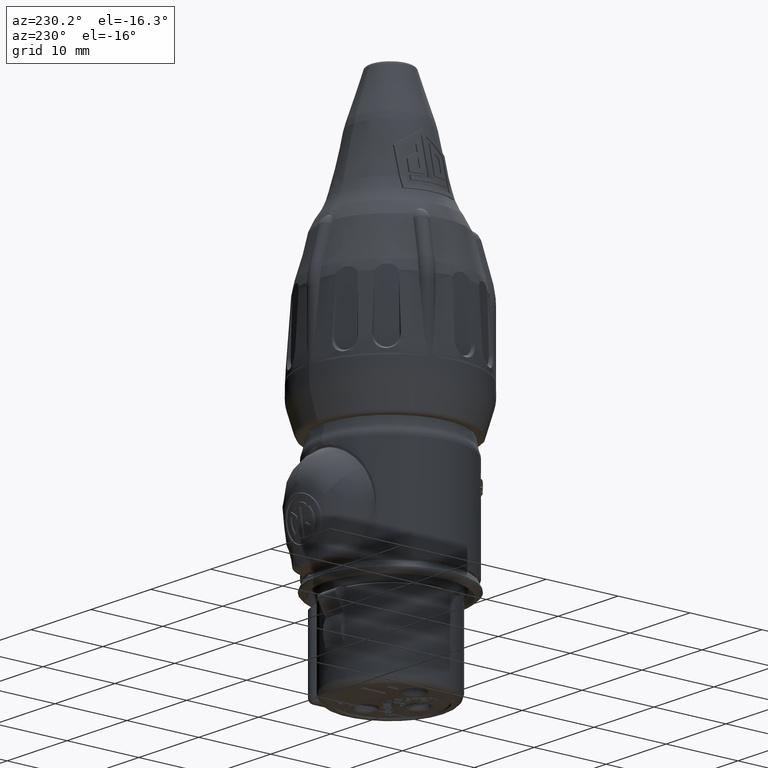
[diagram: clean part render]
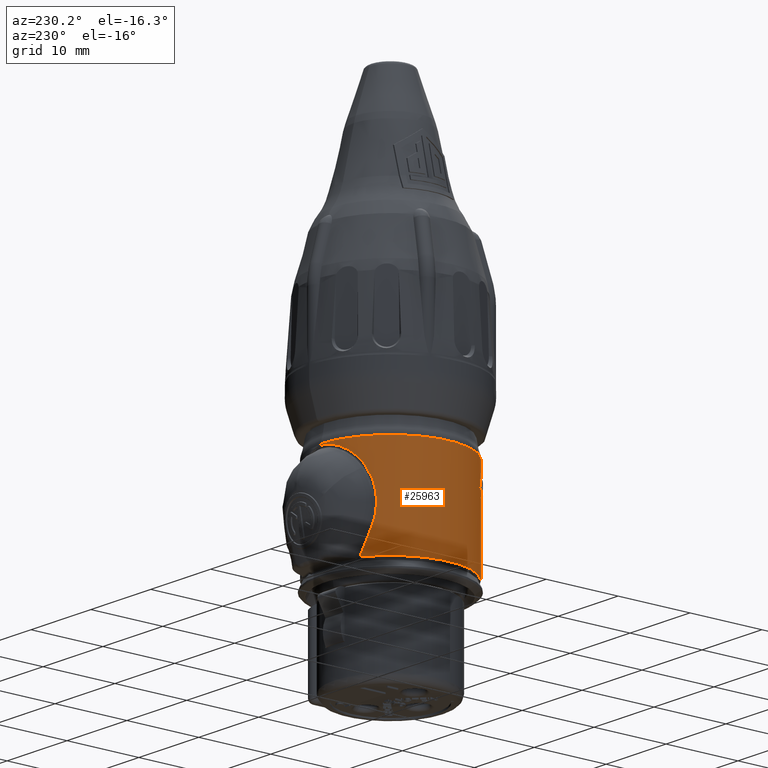
[diagram: same view with one face highlighted and labeled with its STEP entity id]
A machine part, auxiliary view. The second image highlights one B-rep face of the part: STEP entity #25963.
In plain terms, the highlighted cylindrical surface (partial cylindrical patch) has radius 9.675 mm, axis along (0, 0, 1).
Its self-contained STEP definition (entity closure, byte-faithful):
#2498=CARTESIAN_POINT('',(-2.92E-1,-9.670592587841E0,9.609E0));
#2499=CARTESIAN_POINT('',(-2.430355601991E-1,-9.672071051161E0,
9.855998396329E0));
#2500=CARTESIAN_POINT('',(-1.940708023849E-1,-9.673177329178E0,
1.010299839686E1));
#2501=CARTESIAN_POINT('',(-1.451057268722E-1,-9.673911790379E0,1.035E1));
#2503=CARTESIAN_POINT('',(0.E0,0.E0,1.035E1));
#2504=DIRECTION('',(0.E0,0.E0,1.E0));
#2505=DIRECTION('',(-8.011428701522E-2,-9.967856845963E-1,0.E0));
#2506=AXIS2_PLACEMENT_3D('',#2503,#2504,#2505);
#2508=CARTESIAN_POINT('',(-9.22E-1,-9.630967812219E0,9.609E0));
#2509=CARTESIAN_POINT('',(-8.730364947944E-1,-9.635655228134E0,
9.855993681815E0));
#2510=CARTESIAN_POINT('',(-8.240717354693E-1,-9.639965971577E0,
1.010299368997E1));
#2511=CARTESIAN_POINT('',(-7.751057268722E-1,-9.643901498469E0,1.035E1));
#2513=CARTESIAN_POINT('',(0.E0,0.E0,9.609E0));
#2514=DIRECTION('',(0.E0,0.E0,1.E0));
#2515=DIRECTION('',(-1.489405684755E-1,-9.888461493388E-1,0.E0));
#2516=AXIS2_PLACEMENT_3D('',#2513,#2514,#2515);
#2518=CARTESIAN_POINT('',(-1.486E0,-9.560200259409E0,9.382E0));
#2519=CARTESIAN_POINT('',(-1.471000208869E0,-9.562531768061E0,
9.457665613039E0));
#2520=CARTESIAN_POINT('',(-1.456000208724E0,-9.564827154898E0,
9.533332280434E0));
#2521=CARTESIAN_POINT('',(-1.441E0,-9.567086494853E0,9.609E0));
#2523=CARTESIAN_POINT('',(0.E0,0.E0,9.382E0));
#2524=DIRECTION('',(0.E0,0.E0,1.E0));
#2525=DIRECTION('',(-1.535917312661E-1,-9.881343937373E-1,0.E0));
#2526=AXIS2_PLACEMENT_3D('',#2523,#2524,#2525);
#2528=CARTESIAN_POINT('',(0.E0,0.E0,-5.140441475095E-1));
#2529=DIRECTION('',(0.E0,0.E0,-1.E0));
#2530=DIRECTION('',(0.E0,-1.E0,0.E0));
#2531=AXIS2_PLACEMENT_3D('',#2528,#2529,#2530);
#2533=CARTESIAN_POINT('',(-6.148314053924E0,7.470198075976E0,3.358203129712E0));
#2534=CARTESIAN_POINT('',(-6.115115924312E0,7.497521630772E0,3.219812073543E0));
#2535=CARTESIAN_POINT('',(-6.045647503544E0,7.553932447213E0,2.940723846869E0));
#2536=CARTESIAN_POINT('',(-5.935619742043E0,7.640778104093E0,2.527782285422E0));
#2537=CARTESIAN_POINT('',(-5.808795708314E0,7.737743668357E0,2.082677877925E0));
#2538=CARTESIAN_POINT('',(-5.673597393674E0,7.837443756582E0,1.639280687229E0));
#2539=CARTESIAN_POINT('',(-5.534935555893E0,7.935973623052E0,1.212016328942E0));
#2540=CARTESIAN_POINT('',(-5.397280427446E0,8.030185736977E0,
8.114892564286E-1));
#2541=CARTESIAN_POINT('',(-5.264504096552E0,8.117795288375E0,
4.443828003171E-1));
#2542=CARTESIAN_POINT('',(-5.138077811563E0,8.198337213252E0,
1.102271504480E-1));
#2543=CARTESIAN_POINT('',(-5.016609167404E0,8.273227695342E0,
-1.984951749752E-1));
#2544=CARTESIAN_POINT('',(-4.930517147967E0,8.324552922570E0,
-4.092519464488E-1));
#2545=CARTESIAN_POINT('',(-4.886883783513E0,8.350089329293E0,
-5.140441347706E-1));
#2547=CARTESIAN_POINT('',(-5.422429856919E0,8.012669932475E0,9.632429320184E0));
#2548=CARTESIAN_POINT('',(-5.498132831244E0,7.961438887711E0,9.493572044677E0));
#2549=CARTESIAN_POINT('',(-5.636585877743E0,7.864635011139E0,9.217399432847E0));
#2550=CARTESIAN_POINT('',(-5.808988697927E0,7.737844649327E0,8.813055640924E0));
#2551=CARTESIAN_POINT('',(-5.952727339345E0,7.627535008292E0,8.411580911354E0));
#2552=CARTESIAN_POINT('',(-6.063490122130E0,7.539549736583E0,8.043898164148E0));
#2553=CARTESIAN_POINT('',(-6.151016680621E0,7.468214192180E0,7.701405394317E0));
#2554=CARTESIAN_POINT('',(-6.226356934394E0,7.405465220911E0,7.348812346476E0));
#2555=CARTESIAN_POINT('',(-6.290433163248E0,7.351045914951E0,6.975760875486E0));
#2556=CARTESIAN_POINT('',(-6.337330786445E0,7.310586359115E0,6.614005866777E0));
#2557=CARTESIAN_POINT('',(-6.367536708841E0,7.284258738971E0,6.290389639996E0));
#2558=CARTESIAN_POINT('',(-6.386784957446E0,7.267373892904E0,5.981947725703E0));
#2559=CARTESIAN_POINT('',(-6.396768831427E0,7.258579422631E0,5.652569837981E0));
#2560=CARTESIAN_POINT('',(-6.395590816541E0,7.259618340728E0,5.319623424476E0));
#2561=CARTESIAN_POINT('',(-6.383923610032E0,7.269889461694E0,5.001677202686E0));
#2562=CARTESIAN_POINT('',(-6.364409999305E0,7.286988265286E0,4.716143979271E0));
#2563=CARTESIAN_POINT('',(-6.340447507165E0,7.307853895388E0,4.467453109750E0));
#2564=CARTESIAN_POINT('',(-6.313926484758E0,7.330784000787E0,4.249526097767E0));
#2565=CARTESIAN_POINT('',(-6.285936798209E0,7.354800292329E0,4.055760512964E0));
#2566=CARTESIAN_POINT('',(-6.257509428663E0,7.379001485627E0,3.883786013036E0));
#2567=CARTESIAN_POINT('',(-6.229281783499E0,7.402845406298E0,3.730733137373E0));
#2568=CARTESIAN_POINT('',(-6.201600710144E0,7.426048390678E0,3.593692760979E0));
#2569=CARTESIAN_POINT('',(-6.174656032005E0,7.448466282961E0,3.470146291921E0));
#2570=CARTESIAN_POINT('',(-6.156976807425E0,7.463068233849E0,3.394315290057E0));
#2571=CARTESIAN_POINT('',(-6.148314053924E0,7.470198075976E0,3.358203129712E0));
#2573=CARTESIAN_POINT('',(1.077325782357E-14,9.675E0,1.276668458089E1));
#2574=CARTESIAN_POINT('',(-8.348168341964E-2,9.674999985188E0,
1.276668451110E1));
#2575=CARTESIAN_POINT('',(-2.501146377716E-1,9.672803976703E0,
1.276342871668E1));
#2576=CARTESIAN_POINT('',(-4.941017479923E-1,9.663439120274E0,
1.274945909889E1));
#2577=CARTESIAN_POINT('',(-7.463996938390E-1,9.647263280194E0,
1.272521746552E1));
#2578=CARTESIAN_POINT('',(-9.918437161429E-1,9.625031825849E0,
1.269175654501E1));
#2579=CARTESIAN_POINT('',(-1.227583242930E0,9.597763044024E0,1.265058586026E1));
#2580=CARTESIAN_POINT('',(-1.464263962103E0,9.564625025912E0,1.260038862701E1));
#2581=CARTESIAN_POINT('',(-1.722614789234E0,9.521735938066E0,1.253507172629E1));
#2582=CARTESIAN_POINT('',(-2.004120044925E0,9.466702101679E0,1.245044746534E1));
#2583=CARTESIAN_POINT('',(-2.304470755137E0,9.398382184570E0,1.234403943893E1));
#2584=CARTESIAN_POINT('',(-2.631365401131E0,9.312516850112E0,1.220819526439E1));
#2585=CARTESIAN_POINT('',(-2.976861451162E0,9.208043049428E0,1.203958652954E1));
#2586=CARTESIAN_POINT('',(-3.317616832853E0,9.090720588577E0,1.184557113863E1));
#2587=CARTESIAN_POINT('',(-3.643905571507E0,8.964762873493E0,1.163104252297E1));
#2588=CARTESIAN_POINT('',(-3.960086397425E0,8.829728323073E0,1.139285496072E1));
#2589=CARTESIAN_POINT('',(-4.280480330960E0,8.678952518083E0,1.111467017020E1));
#2590=CARTESIAN_POINT('',(-4.575924389749E0,8.526267985655E0,1.081621788330E1));
#2591=CARTESIAN_POINT('',(-4.814494306540E0,8.393267983007E0,1.054051914338E1));
#2592=CARTESIAN_POINT('',(-5.020420421245E0,8.271590188643E0,1.027376680066E1));
#2593=CARTESIAN_POINT('',(-5.220263727792E0,8.147002808730E0,9.982351904104E0));
#2594=CARTESIAN_POINT('',(-5.355917263608E0,8.057680983924E0,9.754425623859E0));
#2595=CARTESIAN_POINT('',(-5.422429856919E0,8.012669932475E0,9.632429320184E0));
#2597=CARTESIAN_POINT('',(0.E0,0.E0,1.294133505427E1));
#2598=DIRECTION('',(0.E0,0.E0,1.E0));
#2599=DIRECTION('',(0.E0,1.E0,0.E0));
#2600=AXIS2_PLACEMENT_3D('',#2597,#2598,#2599);
#2602=CARTESIAN_POINT('',(0.E0,0.E0,9.609E0));
#2603=DIRECTION('',(0.E0,0.E0,1.E0));
#2604=DIRECTION('',(-3.018087855297E-2,-9.995444535236E-1,0.E0));
#2605=AXIS2_PLACEMENT_3D('',#2602,#2603,#2604);
#2607=CARTESIAN_POINT('',(-1.697E0,-9.525010026241E0,9.382E0));
#2608=CARTESIAN_POINT('',(-1.646001743973E0,-9.534096005179E0,
9.704655632903E0));
#2609=CARTESIAN_POINT('',(-1.595001739345E0,-9.542759747924E0,
1.002732232885E1));
#2610=CARTESIAN_POINT('',(-1.544E0,-9.551004606846E0,1.035E1));
#2612=CARTESIAN_POINT('',(0.E0,0.E0,1.035E1));
#2613=DIRECTION('',(0.E0,0.E0,1.E0));
#2614=DIRECTION('',(-2.311111111111E-1,-9.729273633324E-1,0.E0));
#2615=AXIS2_PLACEMENT_3D('',#2612,#2613,#2614);
#2617=CARTESIAN_POINT('',(-2.295587809917E0,-9.398718083173E0,9.973E0));
#2618=CARTESIAN_POINT('',(-2.275725597192E0,-9.403569324907E0,
1.009866419554E1));
#2619=CARTESIAN_POINT('',(-2.255862993306E0,-9.408353945098E0,
1.022433086588E1));
#2620=CARTESIAN_POINT('',(-2.236E0,-9.413072240241E0,1.035E1));
#2622=CARTESIAN_POINT('',(-2.854E0,-9.244474511837E0,1.035E1));
#2623=CARTESIAN_POINT('',(-2.668947415792E0,-9.301604863016E0,
1.022506572119E1));
#2624=CARTESIAN_POINT('',(-2.482804695418E0,-9.352991336572E0,
1.009939546036E1));
#2625=CARTESIAN_POINT('',(-2.295587809917E0,-9.398718083173E0,9.973E0));
#2627=CARTESIAN_POINT('',(0.E0,0.E0,1.035E1));
#2628=DIRECTION('',(0.E0,0.E0,1.E0));
#2629=DIRECTION('',(-3.811886304910E-1,-9.244972839249E-1,0.E0));
#2630=AXIS2_PLACEMENT_3D('',#2627,#2628,#2629);
#2632=CARTESIAN_POINT('',(-3.688E0,-8.944511221973E0,1.035E1));
#2633=CARTESIAN_POINT('',(-3.447770596317E0,-9.043562586413E0,
1.021126669554E1));
#2634=CARTESIAN_POINT('',(-3.204752170176E0,-9.132459402481E0,
1.007092272105E1));
#2635=CARTESIAN_POINT('',(-2.959E0,-9.211402933321E0,9.929E0));
#2637=CARTESIAN_POINT('',(-3.662E0,-8.955187379391E0,9.684E0));
#2638=CARTESIAN_POINT('',(-3.662E0,-8.955187379391E0,9.709891355754E0));
#2639=CARTESIAN_POINT('',(-3.654211208055E0,-8.958379950569E0,
9.756829220315E0));
#2640=CARTESIAN_POINT('',(-3.616656960179E0,-8.973645670257E0,
9.813403987400E0));
#2641=CARTESIAN_POINT('',(-3.557877479507E0,-8.997160392280E0,
9.854043499990E0));
#2642=CARTESIAN_POINT('',(-3.483055085368E0,-9.026428892246E0,
9.882681053708E0));
#2643=CARTESIAN_POINT('',(-3.398278309555E0,-9.058717835720E0,
9.901986103558E0));
#2644=CARTESIAN_POINT('',(-3.303907829907E0,-9.093598311164E0,
9.915087228682E0));
#2645=CARTESIAN_POINT('',(-3.199771696439E0,-9.130801282342E0,
9.923466423403E0));
#2646=CARTESIAN_POINT('',(-3.085608864547E0,-9.170056265781E0,
9.928065072435E0));
#2647=CARTESIAN_POINT('',(-3.002381823617E0,-9.197467291051E0,9.929E0));
#2648=CARTESIAN_POINT('',(-2.959E0,-9.211402933321E0,9.929E0));
#2650=CARTESIAN_POINT('',(-2.503E0,-9.345620150637E0,9.382E0));
#2651=CARTESIAN_POINT('',(-2.558221139440E0,-9.330830494115E0,9.382E0));
#2652=CARTESIAN_POINT('',(-2.664525361994E0,-9.301310490660E0,
9.382689030644E0));
#2653=CARTESIAN_POINT('',(-2.811408348406E0,-9.257906385702E0,
9.385908607195E0));
#2654=CARTESIAN_POINT('',(-2.946681120801E0,-9.215686356116E0,
9.391481652901E0));
#2655=CARTESIAN_POINT('',(-3.071100460992E0,-9.174923915668E0,
9.399660725203E0));
#2656=CARTESIAN_POINT('',(-3.185293283645E0,-9.135863070464E0,
9.410811060943E0));
#2657=CARTESIAN_POINT('',(-3.289935681779E0,-9.098665867189E0,
9.425500082259E0));
#2658=CARTESIAN_POINT('',(-3.385565019213E0,-9.063483049709E0,
9.444648321698E0));
#2659=CARTESIAN_POINT('',(-3.471683580206E0,-9.030809180981E0,
9.469591742990E0));
#2660=CARTESIAN_POINT('',(-3.546227231696E0,-9.001761026090E0,
9.502013953518E0));
#2661=CARTESIAN_POINT('',(-3.608231398046E0,-8.977049883022E0,
9.545093954543E0));
#2662=CARTESIAN_POINT('',(-3.652335215853E0,-8.959151418786E0,
9.606051381670E0));
#2663=CARTESIAN_POINT('',(-3.662E0,-8.955187379391E0,9.656286441935E0));
#2664=CARTESIAN_POINT('',(-3.662E0,-8.955187379391E0,9.684E0));
#2666=CARTESIAN_POINT('',(0.E0,0.E0,9.382E0));
#2667=DIRECTION('',(0.E0,0.E0,1.E0));
#2668=DIRECTION('',(-2.587080103359E-1,-9.659555711253E-1,0.E0));
#2669=AXIS2_PLACEMENT_3D('',#2666,#2667,#2668);
#2705=CARTESIAN_POINT('',(-4.091E0,-8.767516410022E0,9.382E0));
#2706=CARTESIAN_POINT('',(-4.032010493245E0,-8.795041430888E0,
9.704609279878E0));
#2707=CARTESIAN_POINT('',(-3.973010401537E0,-8.821846575092E0,
1.002727644809E1));
#2708=CARTESIAN_POINT('',(-3.914E0,-8.847950553659E0,1.035E1));
#2710=CARTESIAN_POINT('',(0.E0,0.E0,1.035E1));
#2711=DIRECTION('',(0.E0,0.E0,1.E0));
#2712=DIRECTION('',(-4.807235142119E-1,-8.768722272280E-1,0.E0));
#2713=AXIS2_PLACEMENT_3D('',#2710,#2711,#2712);
#2715=CARTESIAN_POINT('',(-4.828E0,-8.384273433041E0,9.382E0));
#2716=CARTESIAN_POINT('',(-4.769014745658E0,-8.418239501805E0,
9.704586023744E0));
#2717=CARTESIAN_POINT('',(-4.710014580022E0,-8.451385514318E0,
1.002725359626E1));
#2718=CARTESIAN_POINT('',(-4.651E0,-8.483738798431E0,1.035E1));
#2720=CARTESIAN_POINT('',(0.E0,0.E0,9.382E0));
#2721=DIRECTION('',(0.E0,0.E0,1.E0));
#2722=DIRECTION('',(-4.990180878553E-1,-8.665915693066E-1,0.E0));
#2723=AXIS2_PLACEMENT_3D('',#2720,#2721,#2722);
#2725=CARTESIAN_POINT('',(-5.201E0,-8.158138513166E0,9.382E0));
#2726=CARTESIAN_POINT('',(-5.133030540938E0,-8.201470598789E0,
9.704521746920E0));
#2727=CARTESIAN_POINT('',(-5.065030101351E0,-8.243628260240E0,
1.002719049947E1));
#2728=CARTESIAN_POINT('',(-4.997E0,-8.284661489765E0,1.035E1));
#2730=CARTESIAN_POINT('',(0.E0,0.E0,1.035E1));
#2731=DIRECTION('',(0.E0,0.E0,1.E0));
#2732=DIRECTION('',(-5.873901808786E-1,-8.093038832277E-1,0.E0));
#2733=AXIS2_PLACEMENT_3D('',#2730,#2731,#2732);
#2735=CARTESIAN_POINT('',(-5.774E0,-7.763153289740E0,9.918196078431E0));
#2736=CARTESIAN_POINT('',(-5.743675026345E0,-7.785708093355E0,
1.006209105146E1));
#2737=CARTESIAN_POINT('',(-5.713341626178E0,-7.807993214584E0,
1.020602600911E1));
#2738=CARTESIAN_POINT('',(-5.683E0,-7.830015070228E0,1.035E1));
#2740=CARTESIAN_POINT('',(-6.514E0,-7.153560581976E0,1.035E1));
#2741=CARTESIAN_POINT('',(-6.275775709751E0,-7.370486546172E0,
1.021099164494E1));
#2742=CARTESIAN_POINT('',(-6.028993737968E0,-7.573496614408E0,
1.006698972172E1));
#2743=CARTESIAN_POINT('',(-5.774E0,-7.763153289740E0,9.918196078431E0));
#2745=CARTESIAN_POINT('',(0.E0,0.E0,1.035E1));
#2746=DIRECTION('',(0.E0,0.E0,1.E0));
#2747=DIRECTION('',(-7.626873385013E-1,-6.467673644285E-1,0.E0));
#2748=AXIS2_PLACEMENT_3D('',#2745,#2746,#2747);
#2750=CARTESIAN_POINT('',(-7.379E0,-6.257474250846E0,1.035E1));
#2751=CARTESIAN_POINT('',(-7.092563767760E0,-6.595248386699E0,
1.019521186140E1));
#2752=CARTESIAN_POINT('',(-6.786905927864E0,-6.908906686280E0,
1.003003650032E1));
#2753=CARTESIAN_POINT('',(-6.463E0,-7.199670548018E0,9.855E0));
#2755=CARTESIAN_POINT('',(-7.5E0,-6.111924819564E0,9.382E0));
#2756=CARTESIAN_POINT('',(-7.180238385282E0,-6.504307281912E0,
9.527850765440E0));
#2757=CARTESIAN_POINT('',(-6.834195200383E0,-6.866456053817E0,
9.685689170896E0));
#2758=CARTESIAN_POINT('',(-6.463E0,-7.199670548018E0,9.855E0));
#2760=CARTESIAN_POINT('',(0.E0,0.E0,9.382E0));
#2761=DIRECTION('',(0.E0,0.E0,1.E0));
#2762=DIRECTION('',(-7.751937984496E-1,-6.317234955622E-1,0.E0));
#2763=AXIS2_PLACEMENT_3D('',#2760,#2761,#2762);
#2765=CARTESIAN_POINT('',(-6.695E0,-6.984454166218E0,9.382E0));
#2766=CARTESIAN_POINT('',(-6.408423498391E0,-7.259154183229E0,
9.522360182482E0));
#2767=CARTESIAN_POINT('',(-6.107917169950E0,-7.513495897081E0,
9.669542951690E0));
#2768=CARTESIAN_POINT('',(-5.794E0,-7.748237799655E0,9.823294117647E0));
#2770=CARTESIAN_POINT('',(-5.887E0,-7.677815835249E0,9.382E0));
#2771=CARTESIAN_POINT('',(-5.856009283382E0,-7.701578107313E0,
9.529053988660E0));
#2772=CARTESIAN_POINT('',(-5.825009204495E0,-7.725049645717E0,
9.676152402201E0));
#2773=CARTESIAN_POINT('',(-5.794E0,-7.748237799655E0,9.823294117647E0));
#2775=CARTESIAN_POINT('',(0.E0,0.E0,9.382E0));
#2776=DIRECTION('',(0.E0,0.E0,1.E0));
#2777=DIRECTION('',(-6.084754521964E-1,-7.935726961498E-1,0.E0));
#2778=AXIS2_PLACEMENT_3D('',#2775,#2776,#2777);
#2992=DIRECTION('',(0.E0,0.E0,-1.E0));
#2993=VECTOR('',#2992,3.332335054273E0);
#2994=CARTESIAN_POINT('',(0.E0,-9.675E0,1.294133505427E1));
#2995=LINE('',#2994,#2993);
#3001=DIRECTION('',(5.892649322339E-14,1.017092484767E-14,-1.E0));
#3002=VECTOR('',#3001,1.746504733842E-1);
#3003=CARTESIAN_POINT('',(0.E0,9.675E0,1.294133505427E1));
#3004=LINE('',#3003,#3002);
#3070=DIRECTION('',(0.E0,0.E0,-1.E0));
#3071=VECTOR('',#3070,9.896044147510E0);
#3072=CARTESIAN_POINT('',(0.E0,-9.675E0,9.382E0));
#3073=LINE('',#3072,#3071);
#18325=CARTESIAN_POINT('',(0.E0,-9.675E0,-5.140441475095E-1));
#18326=CARTESIAN_POINT('',(-4.886883783027E0,8.350089334324E0,
-5.140441475095E-1));
#18327=VERTEX_POINT('',#18325);
#18328=VERTEX_POINT('',#18326);
#18346=VERTEX_POINT('',#2498);
#18347=VERTEX_POINT('',#2501);
#18350=CARTESIAN_POINT('',(0.E0,-9.675E0,9.609E0));
#18351=VERTEX_POINT('',#18350);
#18352=CARTESIAN_POINT('',(-1.486E0,-9.560200259409E0,9.382E0));
#18353=CARTESIAN_POINT('',(0.E0,-9.675E0,9.382E0));
#18354=VERTEX_POINT('',#18352);
#18355=VERTEX_POINT('',#18353);
#18356=VERTEX_POINT('',#2521);
#18359=CARTESIAN_POINT('',(-9.22E-1,-9.630967812219E0,9.609E0));
#18360=VERTEX_POINT('',#18359);
#18363=VERTEX_POINT('',#2511);
#18365=VERTEX_POINT('',#2607);
#18366=VERTEX_POINT('',#2610);
#18369=CARTESIAN_POINT('',(-2.503E0,-9.345620150637E0,9.382E0));
#18370=VERTEX_POINT('',#18369);
#18373=VERTEX_POINT('',#2664);
#18375=VERTEX_POINT('',#2648);
#18377=VERTEX_POINT('',#2632);
#18379=CARTESIAN_POINT('',(-2.854E0,-9.244474511837E0,1.035E1));
#18380=VERTEX_POINT('',#18379);
#18383=VERTEX_POINT('',#2625);
#18385=VERTEX_POINT('',#2620);
#18393=VERTEX_POINT('',#2705);
#18394=VERTEX_POINT('',#2708);
#18397=CARTESIAN_POINT('',(-4.828E0,-8.384273433041E0,9.382E0));
#18398=VERTEX_POINT('',#18397);
#18401=VERTEX_POINT('',#2725);
#18402=VERTEX_POINT('',#2728);
#18405=CARTESIAN_POINT('',(-5.887E0,-7.677815835249E0,9.382E0));
#18406=VERTEX_POINT('',#18405);
#18409=VERTEX_POINT('',#2773);
#18411=VERTEX_POINT('',#2765);
#18413=CARTESIAN_POINT('',(-7.5E0,-6.111924819564E0,9.382E0));
#18414=VERTEX_POINT('',#18413);
#18417=VERTEX_POINT('',#2758);
#18419=VERTEX_POINT('',#2750);
#18421=CARTESIAN_POINT('',(-6.514E0,-7.153560581976E0,1.035E1));
#18422=VERTEX_POINT('',#18421);
#18425=VERTEX_POINT('',#2743);
#18427=VERTEX_POINT('',#2738);
#18533=VERTEX_POINT('',#2547);
#18534=VERTEX_POINT('',#2571);
#18537=VERTEX_POINT('',#2573);
#18555=VERTEX_POINT('',#2718);
#18755=CARTESIAN_POINT('',(0.E0,9.675E0,1.294133505427E1));
#18756=CARTESIAN_POINT('',(0.E0,-9.675E0,1.294133505427E1));
#18757=VERTEX_POINT('',#18755);
#18758=VERTEX_POINT('',#18756);
#25873=CARTESIAN_POINT('',(0.E0,0.E0,-1.3675E0));
#25874=DIRECTION('',(0.E0,0.E0,1.E0));
#25875=DIRECTION('',(0.E0,-1.E0,0.E0));
#25876=AXIS2_PLACEMENT_3D('',#25873,#25874,#25875);
#25877=CYLINDRICAL_SURFACE('',#25876,9.675E0);
#25879=ORIENTED_EDGE('',*,*,#25878,.T.);
#25881=ORIENTED_EDGE('',*,*,#25880,.F.);
#25883=ORIENTED_EDGE('',*,*,#25882,.F.);
#25885=ORIENTED_EDGE('',*,*,#25884,.F.);
#25887=ORIENTED_EDGE('',*,*,#25886,.F.);
#25889=ORIENTED_EDGE('',*,*,#25888,.T.);
#25891=ORIENTED_EDGE('',*,*,#25890,.T.);
#25892=ORIENTED_EDGE('',*,*,#25857,.T.);
#25894=ORIENTED_EDGE('',*,*,#25893,.F.);
#25896=ORIENTED_EDGE('',*,*,#25895,.F.);
#25898=ORIENTED_EDGE('',*,*,#25897,.F.);
#25900=ORIENTED_EDGE('',*,*,#25899,.F.);
#25902=ORIENTED_EDGE('',*,*,#25901,.T.);
#25904=ORIENTED_EDGE('',*,*,#25903,.T.);
#25906=ORIENTED_EDGE('',*,*,#25905,.F.);
#25907=EDGE_LOOP('',(#25879,#25881,#25883,#25885,#25887,#25889,#25891,#25892,
#25894,#25896,#25898,#25900,#25902,#25904,#25906));
#25908=FACE_OUTER_BOUND('',#25907,.F.);
#25910=ORIENTED_EDGE('',*,*,#25909,.T.);
#25912=ORIENTED_EDGE('',*,*,#25911,.F.);
#25914=ORIENTED_EDGE('',*,*,#25913,.F.);
#25916=ORIENTED_EDGE('',*,*,#25915,.F.);
#25918=ORIENTED_EDGE('',*,*,#25917,.F.);
#25920=ORIENTED_EDGE('',*,*,#25919,.T.);
#25922=ORIENTED_EDGE('',*,*,#25921,.F.);
#25924=ORIENTED_EDGE('',*,*,#25923,.F.);
#25926=ORIENTED_EDGE('',*,*,#25925,.T.);
#25927=EDGE_LOOP('',(#25910,#25912,#25914,#25916,#25918,#25920,#25922,#25924,
#25926));
#25928=FACE_BOUND('',#25927,.F.);
#25930=ORIENTED_EDGE('',*,*,#25929,.T.);
#25932=ORIENTED_EDGE('',*,*,#25931,.F.);
#25934=ORIENTED_EDGE('',*,*,#25933,.F.);
#25936=ORIENTED_EDGE('',*,*,#25935,.T.);
#25937=EDGE_LOOP('',(#25930,#25932,#25934,#25936));
#25938=FACE_BOUND('',#25937,.F.);
#25940=ORIENTED_EDGE('',*,*,#25939,.T.);
#25942=ORIENTED_EDGE('',*,*,#25941,.F.);
#25944=ORIENTED_EDGE('',*,*,#25943,.F.);
#25946=ORIENTED_EDGE('',*,*,#25945,.F.);
#25948=ORIENTED_EDGE('',*,*,#25947,.F.);
#25950=ORIENTED_EDGE('',*,*,#25949,.T.);
#25952=ORIENTED_EDGE('',*,*,#25951,.F.);
#25954=ORIENTED_EDGE('',*,*,#25953,.T.);
#25956=ORIENTED_EDGE('',*,*,#25955,.T.);
#25958=ORIENTED_EDGE('',*,*,#25957,.F.);
#25960=ORIENTED_EDGE('',*,*,#25959,.T.);
#25961=EDGE_LOOP('',(#25940,#25942,#25944,#25946,#25948,#25950,#25952,#25954,
#25956,#25958,#25960));
#25962=FACE_BOUND('',#25961,.F.);
#2502=B_SPLINE_CURVE_WITH_KNOTS('',3,(#2498,#2499,#2500,#2501),.UNSPECIFIED.,
.F.,.F.,(4,4),(0.E0,1.E0),.UNSPECIFIED.);
#2507=CIRCLE('',#2506,9.675E0);
#2512=B_SPLINE_CURVE_WITH_KNOTS('',3,(#2508,#2509,#2510,#2511),.UNSPECIFIED.,
.F.,.F.,(4,4),(0.E0,1.E0),.UNSPECIFIED.);
#2517=CIRCLE('',#2516,9.675E0);
#2522=B_SPLINE_CURVE_WITH_KNOTS('',3,(#2518,#2519,#2520,#2521),.UNSPECIFIED.,
.F.,.F.,(4,4),(0.E0,1.E0),.UNSPECIFIED.);
#2527=CIRCLE('',#2526,9.675E0);
#2532=CIRCLE('',#2531,9.675E0);
#2546=B_SPLINE_CURVE_WITH_KNOTS('',3,(#2533,#2534,#2535,#2536,#2537,#2538,#2539,
#2540,#2541,#2542,#2543,#2544,#2545),.UNSPECIFIED.,.F.,.F.,(4,1,1,1,1,1,1,1,1,1,
4),(0.E0,1.E-1,2.E-1,3.E-1,4.E-1,5.E-1,6.E-1,7.E-1,8.E-1,9.E-1,1.E0),
.UNSPECIFIED.);
#2572=B_SPLINE_CURVE_WITH_KNOTS('',3,(#2547,#2548,#2549,#2550,#2551,#2552,#2553,
#2554,#2555,#2556,#2557,#2558,#2559,#2560,#2561,#2562,#2563,#2564,#2565,#2566,
#2567,#2568,#2569,#2570,#2571),.UNSPECIFIED.,.F.,.F.,(4,1,1,1,1,1,1,1,1,1,1,1,1,
1,1,1,1,1,1,1,1,1,4),(0.E0,4.545454545455E-2,9.090909090909E-2,
1.363636363636E-1,1.818181818182E-1,2.272727272727E-1,2.727272727273E-1,
3.181818181818E-1,3.636363636364E-1,4.090909090909E-1,4.545454545455E-1,5.E-1,
5.454545454545E-1,5.909090909091E-1,6.363636363636E-1,6.818181818182E-1,
7.272727272727E-1,7.727272727273E-1,8.181818181818E-1,8.636363636364E-1,
9.090909090909E-1,9.545454545455E-1,1.E0),.UNSPECIFIED.);
#2596=B_SPLINE_CURVE_WITH_KNOTS('',3,(#2573,#2574,#2575,#2576,#2577,#2578,#2579,
#2580,#2581,#2582,#2583,#2584,#2585,#2586,#2587,#2588,#2589,#2590,#2591,#2592,
#2593,#2594,#2595),.UNSPECIFIED.,.F.,.F.,(4,1,1,1,1,1,1,1,1,1,1,1,1,1,1,1,1,1,1,
1,4),(0.E0,5.E-2,1.E-1,1.5E-1,2.E-1,2.5E-1,3.E-1,3.5E-1,4.E-1,4.5E-1,5.E-1,
5.5E-1,6.E-1,6.5E-1,7.E-1,7.5E-1,8.E-1,8.5E-1,9.E-1,9.5E-1,1.E0),.UNSPECIFIED.);
#2601=CIRCLE('',#2600,9.675E0);
#2606=CIRCLE('',#2605,9.675E0);
#2611=B_SPLINE_CURVE_WITH_KNOTS('',3,(#2607,#2608,#2609,#2610),.UNSPECIFIED.,
.F.,.F.,(4,4),(0.E0,1.E0),.UNSPECIFIED.);
#2616=CIRCLE('',#2615,9.675E0);
#2621=B_SPLINE_CURVE_WITH_KNOTS('',3,(#2617,#2618,#2619,#2620),.UNSPECIFIED.,
.F.,.F.,(4,4),(0.E0,1.E0),.UNSPECIFIED.);
#2626=B_SPLINE_CURVE_WITH_KNOTS('',3,(#2622,#2623,#2624,#2625),.UNSPECIFIED.,
.F.,.F.,(4,4),(0.E0,1.E0),.UNSPECIFIED.);
#2631=CIRCLE('',#2630,9.675E0);
#2636=B_SPLINE_CURVE_WITH_KNOTS('',3,(#2632,#2633,#2634,#2635),.UNSPECIFIED.,
.F.,.F.,(4,4),(0.E0,1.E0),.UNSPECIFIED.);
#2649=B_SPLINE_CURVE_WITH_KNOTS('',3,(#2637,#2638,#2639,#2640,#2641,#2642,#2643,
#2644,#2645,#2646,#2647,#2648),.UNSPECIFIED.,.F.,.F.,(4,1,1,1,1,1,1,1,1,4),
(0.E0,1.111111111111E-1,2.222222222222E-1,3.333333333333E-1,4.444444444444E-1,
5.555555555556E-1,6.666666666667E-1,7.777777777778E-1,8.888888888889E-1,1.E0),
.UNSPECIFIED.);
#2665=B_SPLINE_CURVE_WITH_KNOTS('',3,(#2650,#2651,#2652,#2653,#2654,#2655,#2656,
#2657,#2658,#2659,#2660,#2661,#2662,#2663,#2664),.UNSPECIFIED.,.F.,.F.,(4,1,1,1,
1,1,1,1,1,1,1,1,4),(0.E0,8.333333333333E-2,1.666666666667E-1,2.5E-1,
3.333333333333E-1,4.166666666667E-1,5.E-1,5.833333333333E-1,6.666666666667E-1,
7.5E-1,8.333333333333E-1,9.166666666667E-1,1.E0),.UNSPECIFIED.);
#2670=CIRCLE('',#2669,9.675E0);
#2709=B_SPLINE_CURVE_WITH_KNOTS('',3,(#2705,#2706,#2707,#2708),.UNSPECIFIED.,
.F.,.F.,(4,4),(0.E0,1.E0),.UNSPECIFIED.);
#2714=CIRCLE('',#2713,9.675E0);
#2719=B_SPLINE_CURVE_WITH_KNOTS('',3,(#2715,#2716,#2717,#2718),.UNSPECIFIED.,
.F.,.F.,(4,4),(0.E0,1.E0),.UNSPECIFIED.);
#2724=CIRCLE('',#2723,9.675E0);
#2729=B_SPLINE_CURVE_WITH_KNOTS('',3,(#2725,#2726,#2727,#2728),.UNSPECIFIED.,
.F.,.F.,(4,4),(0.E0,1.E0),.UNSPECIFIED.);
#2734=CIRCLE('',#2733,9.675E0);
#2739=B_SPLINE_CURVE_WITH_KNOTS('',3,(#2735,#2736,#2737,#2738),.UNSPECIFIED.,
.F.,.F.,(4,4),(0.E0,1.E0),.UNSPECIFIED.);
#2744=B_SPLINE_CURVE_WITH_KNOTS('',3,(#2740,#2741,#2742,#2743),.UNSPECIFIED.,
.F.,.F.,(4,4),(0.E0,1.E0),.UNSPECIFIED.);
#2749=CIRCLE('',#2748,9.675E0);
#2754=B_SPLINE_CURVE_WITH_KNOTS('',3,(#2750,#2751,#2752,#2753),.UNSPECIFIED.,
.F.,.F.,(4,4),(0.E0,1.E0),.UNSPECIFIED.);
#2759=B_SPLINE_CURVE_WITH_KNOTS('',3,(#2755,#2756,#2757,#2758),.UNSPECIFIED.,
.F.,.F.,(4,4),(0.E0,1.E0),.UNSPECIFIED.);
#2764=CIRCLE('',#2763,9.675E0);
#2769=B_SPLINE_CURVE_WITH_KNOTS('',3,(#2765,#2766,#2767,#2768),.UNSPECIFIED.,
.F.,.F.,(4,4),(0.E0,1.E0),.UNSPECIFIED.);
#2774=B_SPLINE_CURVE_WITH_KNOTS('',3,(#2770,#2771,#2772,#2773),.UNSPECIFIED.,
.F.,.F.,(4,4),(0.E0,1.E0),.UNSPECIFIED.);
#2779=CIRCLE('',#2778,9.675E0);
#25857=EDGE_CURVE('',#18327,#18328,#2532,.T.);
#25878=EDGE_CURVE('',#18346,#18347,#2502,.T.);
#25880=EDGE_CURVE('',#18363,#18347,#2507,.T.);
#25882=EDGE_CURVE('',#18360,#18363,#2512,.T.);
#25884=EDGE_CURVE('',#18356,#18360,#2517,.T.);
#25886=EDGE_CURVE('',#18354,#18356,#2522,.T.);
#25888=EDGE_CURVE('',#18354,#18355,#2527,.T.);
#25890=EDGE_CURVE('',#18355,#18327,#3073,.T.);
#25893=EDGE_CURVE('',#18534,#18328,#2546,.T.);
#25895=EDGE_CURVE('',#18533,#18534,#2572,.T.);
#25897=EDGE_CURVE('',#18537,#18533,#2596,.T.);
#25899=EDGE_CURVE('',#18757,#18537,#3004,.T.);
#25901=EDGE_CURVE('',#18757,#18758,#2601,.T.);
#25903=EDGE_CURVE('',#18758,#18351,#2995,.T.);
#25905=EDGE_CURVE('',#18346,#18351,#2606,.T.);
#25909=EDGE_CURVE('',#18365,#18366,#2611,.T.);
#25911=EDGE_CURVE('',#18385,#18366,#2616,.T.);
#25913=EDGE_CURVE('',#18383,#18385,#2621,.T.);
#25915=EDGE_CURVE('',#18380,#18383,#2626,.T.);
#25917=EDGE_CURVE('',#18377,#18380,#2631,.T.);
#25919=EDGE_CURVE('',#18377,#18375,#2636,.T.);
#25921=EDGE_CURVE('',#18373,#18375,#2649,.T.);
#25923=EDGE_CURVE('',#18370,#18373,#2665,.T.);
#25925=EDGE_CURVE('',#18370,#18365,#2670,.T.);
#25929=EDGE_CURVE('',#18393,#18394,#2709,.T.);
#25931=EDGE_CURVE('',#18555,#18394,#2714,.T.);
#25933=EDGE_CURVE('',#18398,#18555,#2719,.T.);
#25935=EDGE_CURVE('',#18398,#18393,#2724,.T.);
#25939=EDGE_CURVE('',#18401,#18402,#2729,.T.);
#25941=EDGE_CURVE('',#18427,#18402,#2734,.T.);
#25943=EDGE_CURVE('',#18425,#18427,#2739,.T.);
#25945=EDGE_CURVE('',#18422,#18425,#2744,.T.);
#25947=EDGE_CURVE('',#18419,#18422,#2749,.T.);
#25949=EDGE_CURVE('',#18419,#18417,#2754,.T.);
#25951=EDGE_CURVE('',#18414,#18417,#2759,.T.);
#25953=EDGE_CURVE('',#18414,#18411,#2764,.T.);
#25955=EDGE_CURVE('',#18411,#18409,#2769,.T.);
#25957=EDGE_CURVE('',#18406,#18409,#2774,.T.);
#25959=EDGE_CURVE('',#18406,#18401,#2779,.T.);
#25963=ADVANCED_FACE('',(#25908,#25928,#25938,#25962),#25877,.T.);